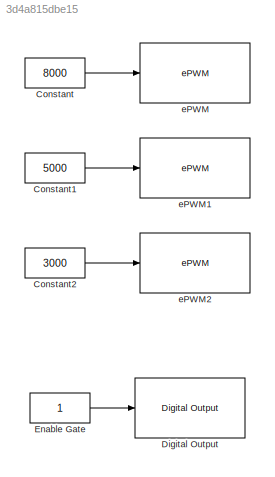
MODEL slx_3d4a815dbe15
KIND model
CONFIG AbsTol = auto
CONFIG EnableMultiTasking = on
CONFIG FixedStep = auto
CONFIG MaxStep = auto
CONFIG MinStep = auto
CONFIG RelTol = 1e-3
CONFIG SampleTimeConstraint = Unconstrained
CONFIG SolverName = FixedStepDiscrete
CONFIG StartTime = 0.0
CONFIG StopTime = Inf
BLOCK [Constant] Constant
  OutDataTypeStr = uint32
  Value = 8000
BLOCK [Constant] Constant1
  OutDataTypeStr = uint32
  Value = 5000
BLOCK [Constant] Constant2
  OutDataTypeStr = uint32
  Value = 3000
BLOCK [Reference] Digital Output  REF=c2837xDlib/Digital Output
  Ports = [1]
  SourceBlock = c2837xDlib/Digital Output
  SourceProductBaseCode = TIC2000
  SourceType = F2837x GPIO Digital Output
  UserDataPersistent = on
BLOCK [Constant] Enable Gate
  OutDataTypeStr = uint32
BLOCK [Reference] ePWM  REF=c2802xlib/ePWM
  Ports = [1]
  SourceBlock = c2802xlib/ePWM
  SourceProductName = Embedded Coder Support Package for Texas Instruments C2000 Processors
  SourceType = C2802x/03x/05x/06x/M3x/37x/07x/004x/38x ePWM
  UserDataPersistent = on
BLOCK [Reference] ePWM1  REF=c2802xlib/ePWM
  Ports = [1]
  SourceBlock = c2802xlib/ePWM
  SourceProductName = Embedded Coder Support Package for Texas Instruments C2000 Processors
  SourceType = C2802x/03x/05x/06x/M3x/37x/07x/004x/38x ePWM
  UserDataPersistent = on
BLOCK [Reference] ePWM2  REF=c2802xlib/ePWM
  Ports = [1]
  SourceBlock = c2802xlib/ePWM
  SourceProductName = Embedded Coder Support Package for Texas Instruments C2000 Processors
  SourceType = C2802x/03x/05x/06x/M3x/37x/07x/004x/38x ePWM
  UserDataPersistent = on
LINE Constant1:1 -> ePWM1:1
LINE Constant2:1 -> ePWM2:1
LINE Constant:1 -> ePWM:1
LINE Enable Gate:1 -> Digital Output:1
